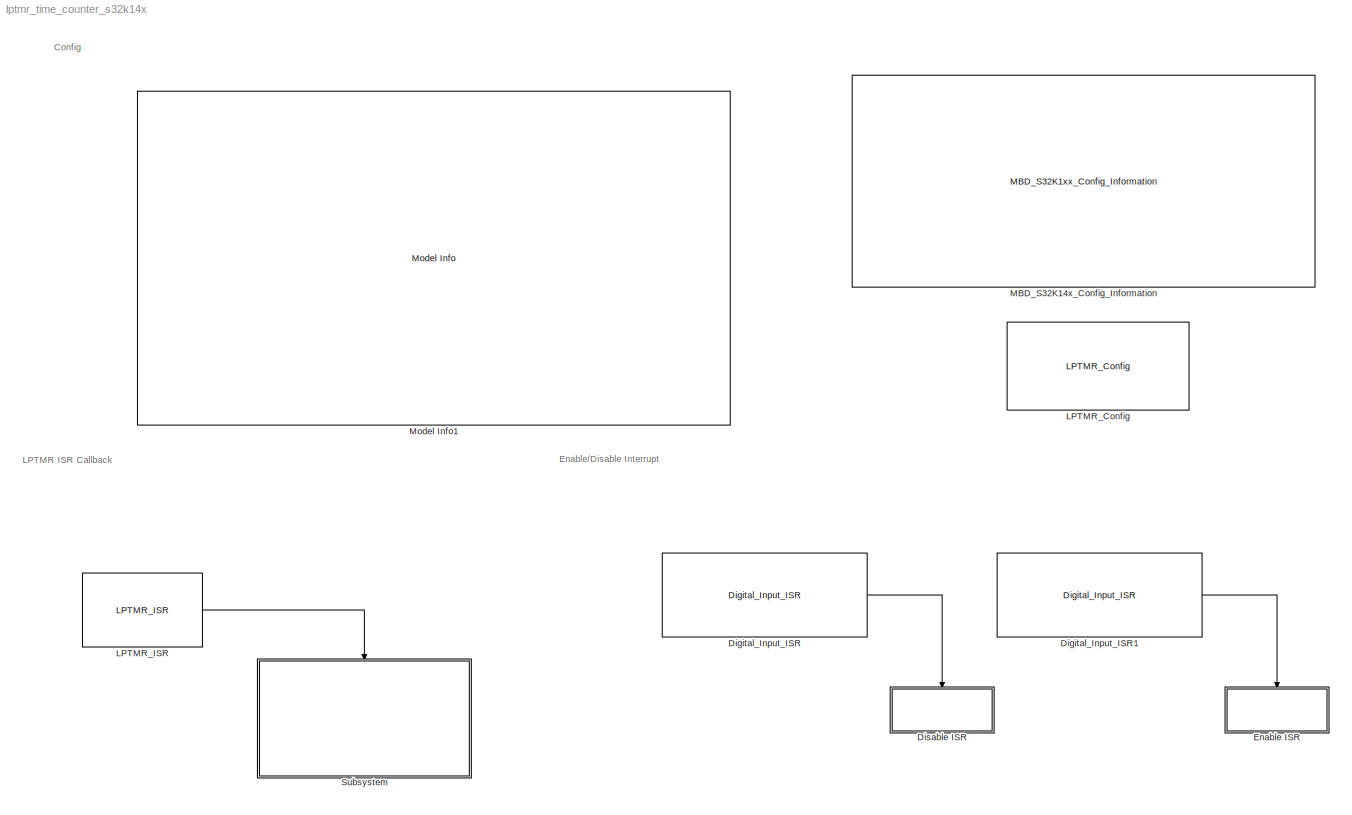
MODEL lptmr_time_counter_s32k14x
KIND model
CONFIG InitFcn = mbd_s32k_consistency_checks(bdroot(gcs));
BLOCK [Reference] Digital_Input_ISR  REF=mbd_s32k1xx_ec_toolbox/GPIO Blocks/Digital_Input_ISR
  MultiThreadCoSim = auto
  Ports = [0, 1]
  SID = 17
  SourceBlock = mbd_s32k1xx_ec_toolbox/GPIO Blocks/Digital_Input_ISR
  SourceType = gpi_s32k_isr
  gpio_pin = PTC12: [PTC12 | Port C I/O]
  irqc = on rising-edge
  prio = 15
BLOCK [Reference] Digital_Input_ISR1  REF=mbd_s32k1xx_ec_toolbox/GPIO Blocks/Digital_Input_ISR
  MultiThreadCoSim = auto
  Ports = [0, 1]
  SID = 22
  SourceBlock = mbd_s32k1xx_ec_toolbox/GPIO Blocks/Digital_Input_ISR
  SourceType = gpi_s32k_isr
  gpio_pin = PTC13: [PTC13 | Port C I/O]
  irqc = on rising-edge
  prio = 15
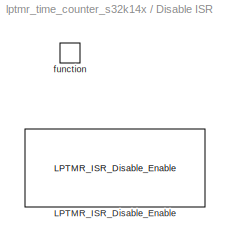
BLOCK [SubSystem] Disable ISR
  Ports = [0, 0, 0, 1]
  RTWSystemCode = Inline
  RequestExecContextInheritance = off
  SID = 18
  TreatAsAtomicUnit = on
BLOCK [Reference] Disable ISR/LPTMR_ISR_Disable_Enable  REF=mbd_s32k1xx_ec_toolbox/Core and System Blocks/LPTMR Blocks/LPTMR_ISR_Disable_Enable
  MultiThreadCoSim = auto
  Ports = []
  SID = 15
  SourceBlock = mbd_s32k1xx_ec_toolbox/Core and System Blocks/LPTMR Blocks/LPTMR_ISR_Disable_Enable
  SourceType = lptmr_s32k_isr_disen
  set_action = Disable
BLOCK [TriggerPort] Disable ISR/function
  Ports = []
  SID = 20
  StatesWhenEnabling = held
  TriggerType = function-call
  VariantControl = Variant
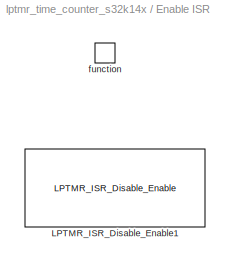
BLOCK [SubSystem] Enable ISR
  Ports = [0, 0, 0, 1]
  RTWSystemCode = Inline
  RequestExecContextInheritance = off
  SID = 23
  TreatAsAtomicUnit = on
BLOCK [Reference] Enable ISR/LPTMR_ISR_Disable_Enable1  REF=mbd_s32k1xx_ec_toolbox/Core and System Blocks/LPTMR Blocks/LPTMR_ISR_Disable_Enable
  MultiThreadCoSim = auto
  Ports = []
  SID = 16
  SourceBlock = mbd_s32k1xx_ec_toolbox/Core and System Blocks/LPTMR Blocks/LPTMR_ISR_Disable_Enable
  SourceType = lptmr_s32k_isr_disen
  set_action = Enable
BLOCK [TriggerPort] Enable ISR/function
  Ports = []
  SID = 24
  StatesWhenEnabling = held
  TriggerType = function-call
  VariantControl = Variant
BLOCK [Reference] LPTMR_Config  REF=mbd_s32k1xx_ec_toolbox/Core and System Blocks/LPTMR Blocks/LPTMR_Config
  MultiThreadCoSim = auto
  Ports = []
  SID = 2
  SourceBlock = mbd_s32k1xx_ec_toolbox/Core and System Blocks/LPTMR Blocks/LPTMR_Config
  SourceType = lptmr_s32k_config
  bypass_prescaler = off
  compare_value = 1000000
  compare_value_units = Microseconds
  enable_isr = on
  free_run = off
  input_clock = SIRC DIV2 clock
  pin_gpio = PTE11: [LPTMR0_ALT1 | Low Power Timer Input Channel]
  pin_polarity = Count pulse on rising edge
  pin_select = Count pulses from pin alternative 1
  pin_trgmux_source = Trigger function is disabled
  prescaler = Timer mode: prescaler 2, Glitch filter mode: invalid
  show_adv_opts = on
  start_counter = on
  work_mode = Time Counter mode
BLOCK [Reference] LPTMR_ISR  REF=mbd_s32k1xx_ec_toolbox/Core and System Blocks/LPTMR Blocks/LPTMR_ISR
  MultiThreadCoSim = auto
  Ports = [0, 1]
  SID = 3
  SourceBlock = mbd_s32k1xx_ec_toolbox/Core and System Blocks/LPTMR Blocks/LPTMR_ISR
  SourceType = lptmr_s32k_isr
BLOCK [Reference] MBD_S32K14x_Config_Information  REF=mbd_s32k1xx_ec_toolbox/MBD_S32K1xx_Config_Information
  ADC_PcrCheckEnDis = on
  AMMCLIB_PcrCheckEnDis = on
  CMP_PcrCheckEnDis = on
  CSEc_PcrCheckEnDis = on
  ConfigParams_PcrCheckEnDis = on
  FM_PcrCheckEnDis = on
  FTM_Dual_Edge_Inputs_PcrCheckEnDis = on
  FTM_Hall_Sensor_Inputs_PcrCheckEnDis = on
  FTM_Input_Edge_Inputs_PcrCheckEnDis = on
  FTM_PWM_PcrCheckEnDis = on
  FTM_Quadrature_Inputs_PcrCheckEnDis = on
  FlexCAN_PcrCheckEnDis = on
  FlexIO_PcrCheckEnDis = on
  GPIO_InputPcrCheckEnDis = on
  GPIO_OutputPcrCheckEnDis = on
  LIN_PcrCheckEnDis = on
  LPI2C_PcrCheckEnDis = on
  LPSPI_PcrCheckEnDis = on
  LPTMR_PcrCheckEnDis = on
  LPUART_PcrCheckEnDis = on
  ModelRef_PcrCheckEnDis = on
  MultiThreadCoSim = auto
  PDB0_PcrCheckEnDis = on
  PIT_PcrCheckEnDis = on
  Ports = []
  Profile_PcrCheckEnDis = on
  RTC_PcrCheckEnDis = on
  SBC_PcrCheckEnDis = on
  SID = 4
  SourceBlock = mbd_s32k1xx_ec_toolbox/MBD_S32K1xx_Config_Information
  SourceType = MBDTBX_EC_S32K
  WDOG_PcrCheckEnDis = on
  config_params = []
  disp_str = Target : S32K144-64KB_SRAM\nPackage : 100-pin\nSystem clock : 80 MHz\nXTAL clock : External 8 MHz\nCompiler : GCC\nTarget Type : FLASH\nDownload Code after build : (OpenSDA: D)\nStep Tick Interrupt Priority : 15
  ds_import_enable = on
  eDMA_PcrCheckEnDis = on
  gcc_target_assemble_opts = -mcpu=cortex-m4 -mthumb -mfloat-abi=hard -mfpu=fpv4-sp-d16 -g
  gcc_target_compile_opts = -mcpu=cortex-m4 -mthumb -mfloat-abi=hard -mfpu=fpv4-sp-d16 -O1 -g -gstrict-dwarf
  gcc_target_default_lcf = on
  gcc_target_link_opts = -mcpu=cortex-m4 -mthumb -mfloat-abi=hard -mfpu=fpv4-sp-d16
  gcc_target_user_lcf = S32K144_64_flash.ld
  ghs_target_assemble_opts = -cpu=cortexm4f -fpu=vfpv4_d16
  ghs_target_compile_opts = -cpu=cortexm4f -thumb -DARM_MATH_CM4 -fpu=vfpv4_d16 -fsingle -Ogeneral -Wundef -Wimplicit-int -Wshadow -Wtrigraphs --no_commons --gnu_asm -gnu99 -gdwarf-2 -G
  ghs_target_default_lcf = off
  ghs_target_link_opts = -cpu=cortexm4f -thumb -fpu=vfpv4_d16
  ghs_target_user_lcf = S32K144_64_flash.ld
  iar_target_assemble_opts = --cpu Cortex-M4F --thumb --fpu VFPv4_sp
  iar_target_compile_opts = --cpu=Cortex-M4F --thumb --fpu=VFPv4_sp -Ol -e --debug --dlib_config normal
  iar_target_default_lcf = off
  iar_target_link_opts = --no_exceptions --vfe --inline
  iar_target_user_lcf = S32K144_64_flash.icf
  mbdt_ver = 0
  mcu_steptick_prio = 15
  mcu_steptick_timer = LPIT Channel 0
  mcu_system_clock_freq = 80
  mcu_target_name = S32K144
  mcu_target_package = 100-LQFP
  mcu_target_sram_size = 64KB
  mcu_xtal_freq = External 8
  pil_download_enable = off
  pil_download_rate = 57600
  pil_opensda_drive = Custom
  pil_opensda_drive_custom = D
  pil_uart_instance = 1
  pil_uart_rx = PTC6: [LPUART1_RX | Receive]
  pil_uart_tx = PTC7: [LPUART1_TX | Transmit]
  rbl_com_port = Custom
  rbl_com_port_custom = COM1
  rbl_download_enable = on
  rbl_download_interface = OpenSDA
  rbl_restart_request = off
  rbl_start_delay = 5000000
  target_compiler = GCC
  target_memory = FLASH
BLOCK [Reference] Model Info1  REF=simulink/Model-Wide\nUtilities/Model Info
  DisplayStringWithTags = Model Name: %<ModelName>\n\nDescription: %<Description>
  Frame = off
  HorizontalTextAlignment = Left
  LeftAlignmentValue = 0.02
  MaskDisplayString = Model Name: lptmr_time_counter_s32k14x\\n\\nDescription: This model demonstrates the \"Low Power Timer\" functionality by setting \\nthe peripheral to work in Time Counter mode.\\n\\nValidation: When the processor boots up, it configures the LPTMR timer to Time Counter \\nmode to count 1sec and to toggle the RGB led green at every callback.\\n\\nWhen pressing the SW2 button the interrupt which tog...<+106ch>
  Ports = []
  SID = 28
  SourceBlock = simulink/Model-Wide\nUtilities/Model Info
  SourceProductBaseCode = SL
  SourceProductName = Simulink
  SourceType = CMBlock
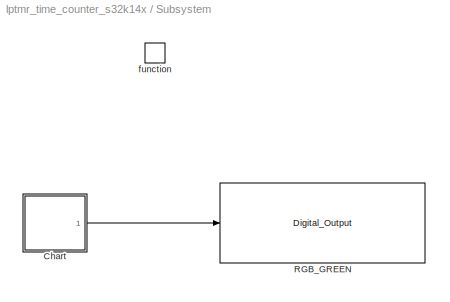
BLOCK [SubSystem] Subsystem
  Ports = [0, 0, 0, 1]
  RequestExecContextInheritance = off
  SID = 6
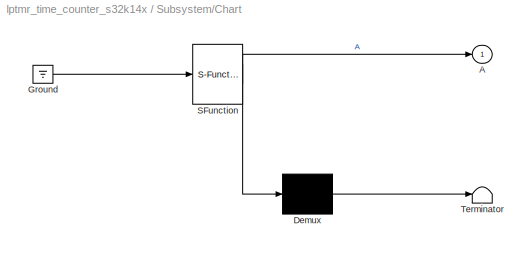
BLOCK [SubSystem] Subsystem/Chart
  ErrorFcn = Stateflow.Translate.translate
  PermitHierarchicalResolution = ExplicitOnly
  Ports = [0, 1]
  RequestExecContextInheritance = off
  SFBlockType = Chart
  SID = 29
  TreatAsAtomicUnit = on
BLOCK [Outport] Subsystem/Chart/ A
  IconDisplay = Port number
  SID = 29::6
BLOCK [Demux] Subsystem/Chart/ Demux 
  Outputs = 1
  Ports = [1, 1]
  SID = 29::44
BLOCK [Ground] Subsystem/Chart/ Ground 
  SID = 29::46
BLOCK [S-Function] Subsystem/Chart/ SFunction 
  EnableBusSupport = on
  FunctionName = sf_sfun
  PortCounts = [1 2]
  Ports = [1, 2]
  SFcnIsStateOwnerBlock = off
  SFunctionDeploymentMode = off
  SID = 29::43
  Tag = Stateflow S-Function lptmr_time_counter_s32k14x 3
BLOCK [Terminator] Subsystem/Chart/ Terminator 
  SID = 29::45
BLOCK [Reference] Subsystem/RGB_GREEN  REF=mbd_s32k1xx_ec_toolbox/GPIO Blocks/Digital_Output
  MultiThreadCoSim = auto
  Ports = [1]
  SID = 11
  SourceBlock = mbd_s32k1xx_ec_toolbox/GPIO Blocks/Digital_Output
  SourceType = gpio_s32k_output
  drive_strength = Low
  gpio_pin = PTD16: [PTD16 | Port D I/O]
  init_val = Low
BLOCK [TriggerPort] Subsystem/function
  Ports = []
  SID = 7
  StatesWhenEnabling = held
  TriggerType = function-call
  VariantControl = Variant
ANNOTATION (root): Config
ANNOTATION (root): Enable/Disable Interrupt
ANNOTATION (root): LPTMR ISR Callback
LINE Digital_Input_ISR1:1 -> Enable ISR:trigger
LINE Digital_Input_ISR:1 -> Disable ISR:trigger
LINE LPTMR_ISR:1 -> Subsystem:trigger
LINE Subsystem/Chart/ Demux :1 -> Subsystem/Chart/ Terminator :1
LINE Subsystem/Chart/ Ground :1 -> Subsystem/Chart/ SFunction :1
LINE Subsystem/Chart/ SFunction :1 -> Subsystem/Chart/ Demux :1
LINE Subsystem/Chart/ SFunction :2 -> Subsystem/Chart/ A:1
LINE Subsystem/Chart:1 -> Subsystem/RGB_GREEN:1
CHART Subsystem/Chart states=2 transitions=3
  STATE_LABEL 'A'
  STATE_LABEL 'A1'
